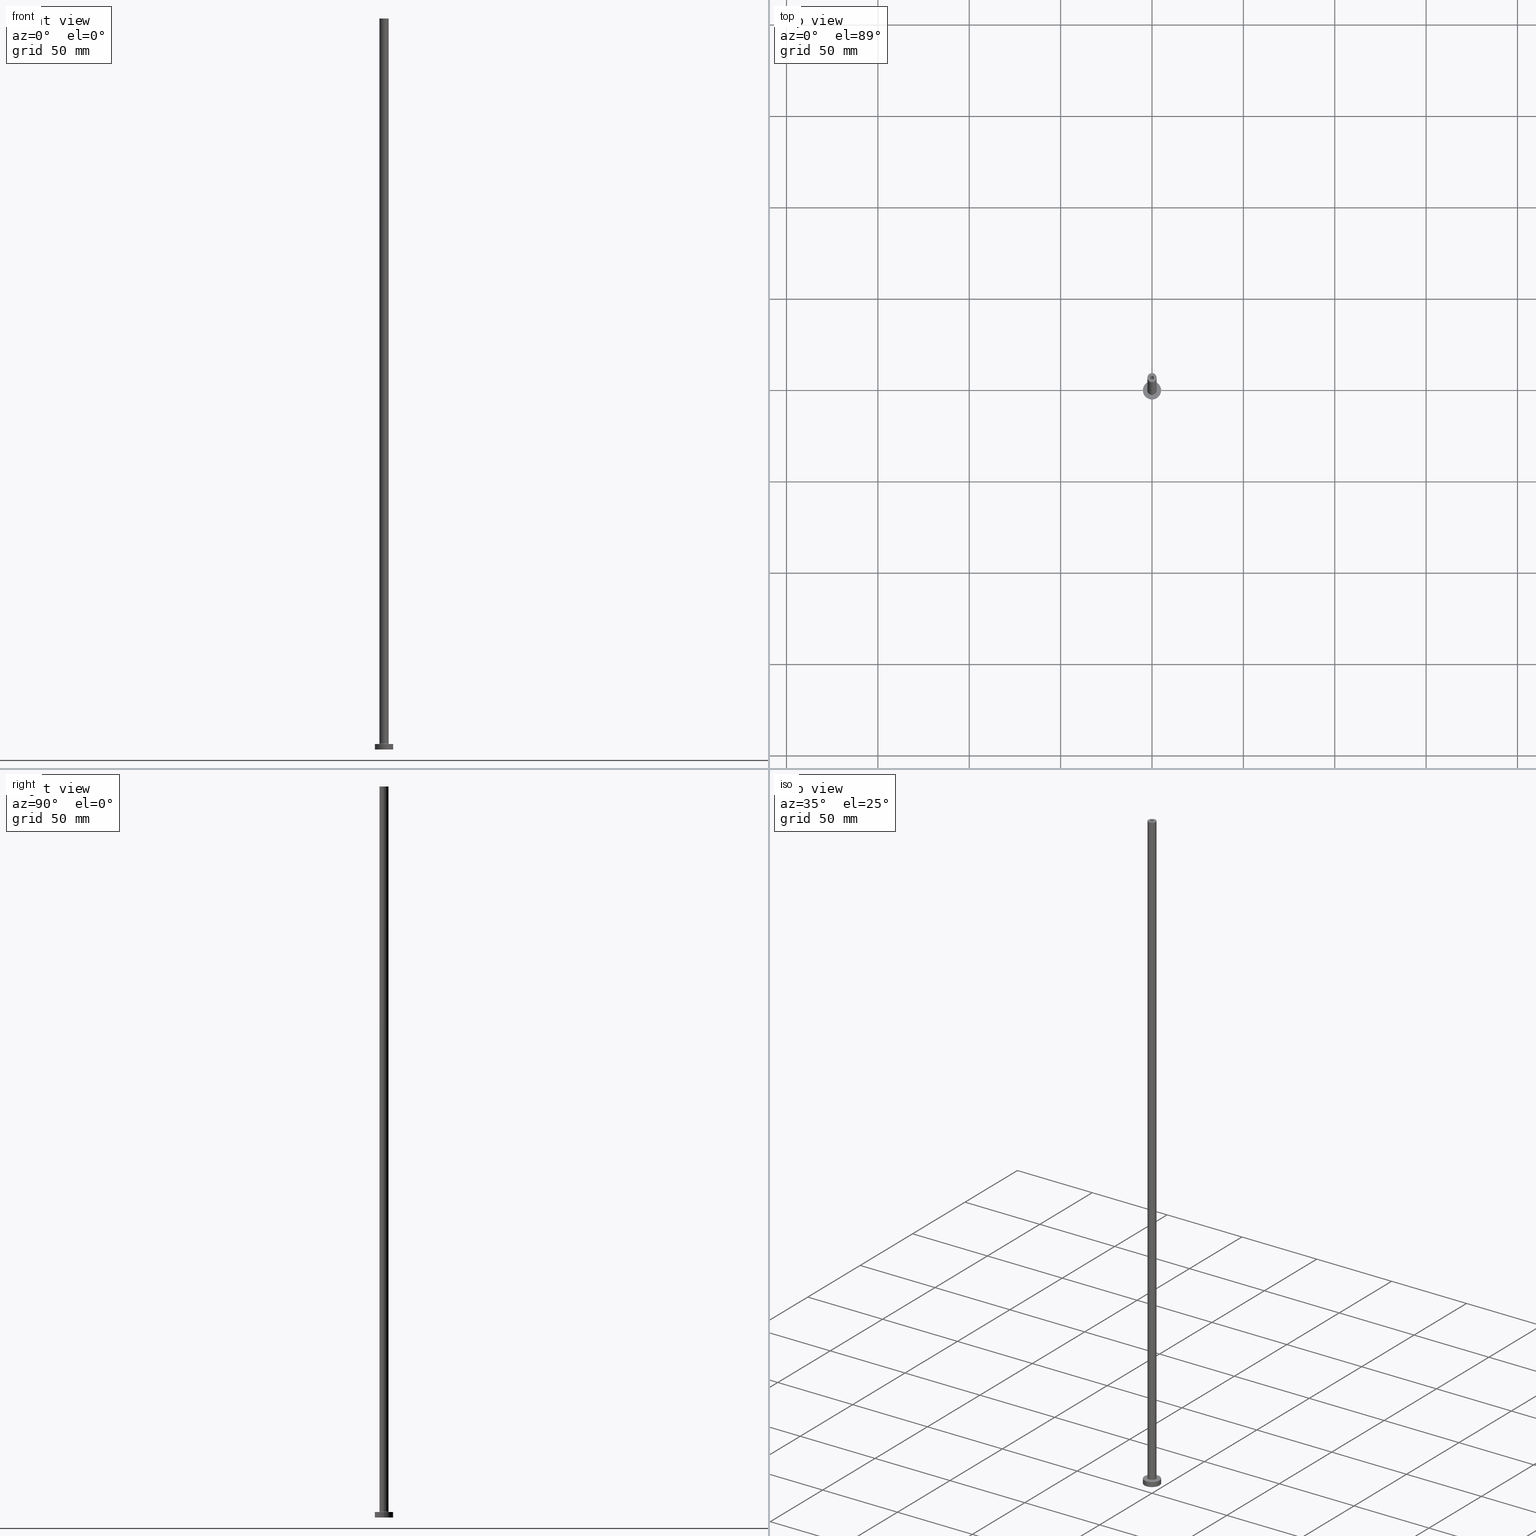
[diagram: canonical four-view strip — front | top / right | iso, engineering-drawing reading convention]
A machine part, canonical four-view strip (front | top / right | iso — engineering-drawing reading convention). The complete STEP part file that produces these views, byte-faithful:
ISO-10303-21;
HEADER;
FILE_DESCRIPTION (( 'STEP AP203' ),
    '1' );
FILE_NAME ('f98d.STEP',
    '2023-02-13T18:11:41',
    ( '' ),
    ( '' ),
    'SwSTEP 2.0',
    'SolidWorks 2019',
    '' );
FILE_SCHEMA (( 'CONFIG_CONTROL_DESIGN' ));
ENDSEC;

DATA;
#1 = CARTESIAN_POINT ( 'NONE',  ( 0.000000000000000000, 0.000000000000000000, 400.0000000000000000 ) ) ;
#2 = CARTESIAN_POINT ( 'NONE',  ( 0.000000000000000000, 0.000000000000000000, 3.000000000000000000 ) ) ;
#3 = AXIS2_PLACEMENT_3D ( 'NONE', #206, #456, #197 ) ;
#4 = DIRECTION ( 'NONE',  ( 0.000000000000000000, 0.000000000000000000, -1.000000000000000000 ) ) ;
#5 = EDGE_CURVE ( 'NONE', #427, #170, #232, .T. ) ;
#6 = FACE_OUTER_BOUND ( 'NONE', #419, .T. ) ;
#7 =( NAMED_UNIT ( * ) SI_UNIT ( $, .STERADIAN. ) SOLID_ANGLE_UNIT ( ) );
#8 = DIRECTION ( 'NONE',  ( 1.000000000000000000, 0.000000000000000000, 0.000000000000000000 ) ) ;
#9 = AXIS2_PLACEMENT_3D ( 'NONE', #2, #35, #413 ) ;
#10 = COORDINATED_UNIVERSAL_TIME_OFFSET ( 1, 0, .AHEAD. ) ;
#11 = ORIENTED_EDGE ( 'NONE', *, *, #68, .F. ) ;
#12 = CALENDAR_DATE ( 2023, 13, 2 ) ;
#13 = DIRECTION ( 'NONE',  ( 1.000000000000000000, 0.000000000000000000, -0.000000000000000000 ) ) ;
#14 = COORDINATED_UNIVERSAL_TIME_OFFSET ( 1, 0, .AHEAD. ) ;
#15 = CARTESIAN_POINT ( 'NONE',  ( -2.799999999999999822, 3.429011037612589276E-16, 3.000000000000012434 ) ) ;
#16 = AXIS2_PLACEMENT_3D ( 'NONE', #229, #343, #449 ) ;
#17 = PERSON_AND_ORGANIZATION_ROLE ( 'design_owner' ) ;
#18 = PERSON_AND_ORGANIZATION_ROLE ( 'design_supplier' ) ;
#19 = DIRECTION ( 'NONE',  ( -0.000000000000000000, -0.000000000000000000, -1.000000000000000000 ) ) ;
#20 = FACE_OUTER_BOUND ( 'NONE', #40, .T. ) ;
#21 = DIRECTION ( 'NONE',  ( 0.000000000000000000, 0.000000000000000000, 1.000000000000000000 ) ) ;
#22 = ADVANCED_FACE ( 'NONE', ( #234 ), #387, .T. ) ;
#23 = AXIS2_PLACEMENT_3D ( 'NONE', #175, #82, #145 ) ;
#24 = AXIS2_PLACEMENT_3D ( 'NONE', #218, #212, #294 ) ;
#25 = DIRECTION ( 'NONE',  ( 0.000000000000000000, 0.000000000000000000, -1.000000000000000000 ) ) ;
#26 = PLANE ( 'NONE',  #319 ) ;
#27 = VERTEX_POINT ( 'NONE', #436 ) ;
#28 = DIRECTION ( 'NONE',  ( -1.000000000000000000, 0.000000000000000000, 0.000000000000000000 ) ) ;
#29 = EDGE_CURVE ( 'NONE', #144, #170, #249, .T. ) ;
#30 = APPLICATION_CONTEXT ( 'configuration controlled 3d designs of mechanical parts and assemblies' ) ;
#31 = ORIENTED_EDGE ( 'NONE', *, *, #272, .F. ) ;
#32 = CIRCLE ( 'NONE', #282, 0.2999999999999999334 ) ;
#33 = ORIENTED_EDGE ( 'NONE', *, *, #276, .F. ) ;
#34 = ADVANCED_FACE ( 'NONE', ( #162 ), #39, .T. ) ;
#35 = DIRECTION ( 'NONE',  ( -0.000000000000000000, -0.000000000000000000, -1.000000000000000000 ) ) ;
#36 = AXIS2_PLACEMENT_3D ( 'NONE', #289, #440, #110 ) ;
#37 = ORIENTED_EDGE ( 'NONE', *, *, #96, .T. ) ;
#38 = DIRECTION ( 'NONE',  ( -0.000000000000000000, -0.000000000000000000, -1.000000000000000000 ) ) ;
#39 = CYLINDRICAL_SURFACE ( 'NONE', #454, 5.000000000000000000 ) ;
#40 = EDGE_LOOP ( 'NONE', ( #11, #126 ) ) ;
#41 = CARTESIAN_POINT ( 'NONE',  ( -2.799999999999999822, 3.429011037612588783E-16, 3.300000000000025135 ) ) ;
#42 = EDGE_CURVE ( 'NONE', #438, #385, #32, .T. ) ;
#43 = DATE_AND_TIME ( #366, #416 ) ;
#44 = ORIENTED_EDGE ( 'NONE', *, *, #159, .T. ) ;
#45 = LINE ( 'NONE', #141, #373 ) ;
#46 = VECTOR ( 'NONE', #453, 1000.000000000000000 ) ;
#47 = AXIS2_PLACEMENT_3D ( 'NONE', #50, #281, #185 ) ;
#48 = AXIS2_PLACEMENT_3D ( 'NONE', #117, #120, #412 ) ;
#49 = ORIENTED_EDGE ( 'NONE', *, *, #178, .F. ) ;
#50 = CARTESIAN_POINT ( 'NONE',  ( 0.000000000000000000, 0.000000000000000000, 400.0000000000000000 ) ) ;
#51 = APPROVAL_DATE_TIME ( #287, #271 ) ;
#52 = DIRECTION ( 'NONE',  ( 0.000000000000000000, 0.000000000000000000, -1.000000000000000000 ) ) ;
#53 = APPROVAL_DATE_TIME ( #372, #125 ) ;
#54 = DIRECTION ( 'NONE',  ( 1.000000000000000000, 0.000000000000000000, 0.000000000000000000 ) ) ;
#55 = EDGE_CURVE ( 'NONE', #27, #140, #191, .T. ) ;
#56 = DIRECTION ( 'NONE',  ( -1.000000000000000000, 0.000000000000000000, 0.000000000000000000 ) ) ;
#57 = VECTOR ( 'NONE', #158, 1000.000000000000000 ) ;
#58 = CC_DESIGN_SECURITY_CLASSIFICATION ( #308, ( #391 ) ) ;
#59 = CARTESIAN_POINT ( 'NONE',  ( -1.000000000000000000, 0.000000000000000000, 365.0000000000000000 ) ) ;
#60 = LINE ( 'NONE', #265, #57 ) ;
#61 = DIRECTION ( 'NONE',  ( 1.000000000000000000, 0.000000000000000000, 0.000000000000000000 ) ) ;
#62 = FACE_OUTER_BOUND ( 'NONE', #398, .T. ) ;
#63 = AXIS2_PLACEMENT_3D ( 'NONE', #376, #415, #121 ) ;
#64 = CARTESIAN_POINT ( 'NONE',  ( -1.149999999999999911, 0.000000000000000000, 365.0000000000000000 ) ) ;
#65 = EDGE_LOOP ( 'NONE', ( #321, #420, #151, #380 ) ) ;
#66 = DIRECTION ( 'NONE',  ( 0.000000000000000000, 0.000000000000000000, -1.000000000000000000 ) ) ;
#67 = VERTEX_POINT ( 'NONE', #64 ) ;
#68 = EDGE_CURVE ( 'NONE', #67, #259, #143, .T. ) ;
#69 = TOROIDAL_SURFACE ( 'NONE', #16, 2.799999999999999822, 0.2999999999999999889 ) ;
#70 = APPROVAL_PERSON_ORGANIZATION ( #116, #271, #414 ) ;
#71 = DIRECTION ( 'NONE',  ( 0.000000000000000000, -1.000000000000000000, 0.000000000000000000 ) ) ;
#72 = ADVANCED_FACE ( 'NONE', ( #354, #347 ), #26, .T. ) ;
#73 = VERTEX_POINT ( 'NONE', #171 ) ;
#74 = EDGE_LOOP ( 'NONE', ( #136, #33, #252, #204 ) ) ;
#75 = ORIENTED_EDGE ( 'NONE', *, *, #342, .T. ) ;
#76 = CARTESIAN_POINT ( 'NONE',  ( 0.000000000000000000, 0.000000000000000000, 0.000000000000000000 ) ) ;
#77 = DIRECTION ( 'NONE',  ( 0.000000000000000000, 0.000000000000000000, -1.000000000000000000 ) ) ;
#78 = VERTEX_POINT ( 'NONE', #318 ) ;
#79 = CARTESIAN_POINT ( 'NONE',  ( 0.000000000000000000, 0.000000000000000000, 368.2526911934581335 ) ) ;
#80 = CC_DESIGN_DATE_AND_TIME_ASSIGNMENT ( #43, #106, ( #362 ) ) ;
#81 = ORIENTED_EDGE ( 'NONE', *, *, #388, .F. ) ;
#82 = DIRECTION ( 'NONE',  ( 0.000000000000000000, 0.000000000000000000, 1.000000000000000000 ) ) ;
#83 = CIRCLE ( 'NONE', #173, 0.2999999999999999334 ) ;
#84 = APPROVAL_ROLE ( '' ) ;
#85 = DATE_AND_TIME ( #12, #245 ) ;
#86 = ORIENTED_EDGE ( 'NONE', *, *, #330, .T. ) ;
#87 = CARTESIAN_POINT ( 'NONE',  ( 1.149999999999999911, 1.408343819019456028E-16, 365.0000000000000000 ) ) ;
#88 = CARTESIAN_POINT ( 'NONE',  ( 0.000000000000000000, 0.000000000000000000, 0.000000000000000000 ) ) ;
#89 = SHAPE_DEFINITION_REPRESENTATION ( #137, #169 ) ;
#90 = CARTESIAN_POINT ( 'NONE',  ( 0.000000000000000000, 0.000000000000000000, 3.000000000000000000 ) ) ;
#91 = CYLINDRICAL_SURFACE ( 'NONE', #202, 2.500000000000000000 ) ;
#92 = CIRCLE ( 'NONE', #326, 1.149999999999999911 ) ;
#93 = CIRCLE ( 'NONE', #192, 5.000000000000000000 ) ;
#94 = DIRECTION ( 'NONE',  ( 0.000000000000000000, 0.000000000000000000, 1.000000000000000000 ) ) ;
#95 = CARTESIAN_POINT ( 'NONE',  ( -2.500000000000000000, 0.000000000000000000, 400.0000000000000000 ) ) ;
#96 = EDGE_CURVE ( 'NONE', #306, #385, #240, .T. ) ;
#97 = AXIS2_PLACEMENT_3D ( 'NONE', #451, #338, #195 ) ;
#98 = CARTESIAN_POINT ( 'NONE',  ( 0.000000000000000000, 0.000000000000000000, 400.0000000000000000 ) ) ;
#99 = CARTESIAN_POINT ( 'NONE',  ( 0.000000000000000000, 0.000000000000000000, 0.000000000000000000 ) ) ;
#100 = CIRCLE ( 'NONE', #48, 2.500000000000000000 ) ;
#101 = EDGE_CURVE ( 'NONE', #259, #348, #300, .T. ) ;
#102 = AXIS2_PLACEMENT_3D ( 'NONE', #247, #52, #154 ) ;
#103 = ORIENTED_EDGE ( 'NONE', *, *, #101, .T. ) ;
#104 = CIRCLE ( 'NONE', #455, 1.000000000000000000 ) ;
#105 = CC_DESIGN_PERSON_AND_ORGANIZATION_ASSIGNMENT ( #224, #296, ( #391 ) ) ;
#106 = DATE_TIME_ROLE ( 'creation_date' ) ;
#107 = ORIENTED_EDGE ( 'NONE', *, *, #458, .T. ) ;
#108 = CARTESIAN_POINT ( 'NONE',  ( 1.149999999999999911, 1.408343819019456028E-16, 0.000000000000000000 ) ) ;
#109 = ORIENTED_EDGE ( 'NONE', *, *, #68, .T. ) ;
#110 = DIRECTION ( 'NONE',  ( 1.000000000000000000, 0.000000000000000000, -0.000000000000000000 ) ) ;
#111 = CALENDAR_DATE ( 2023, 13, 2 ) ;
#112 = VERTEX_POINT ( 'NONE', #368 ) ;
#113 = DIRECTION ( 'NONE',  ( 1.000000000000000000, 0.000000000000000000, 0.000000000000000000 ) ) ;
#114 = CIRCLE ( 'NONE', #47, 2.500000000000000000 ) ;
#115 = VECTOR ( 'NONE', #435, 1000.000000000000000 ) ;
#116 = PERSON_AND_ORGANIZATION ( #273, #434 ) ;
#117 = CARTESIAN_POINT ( 'NONE',  ( 0.000000000000000000, 0.000000000000000000, 3.300000000000025135 ) ) ;
#118 = PERSON_AND_ORGANIZATION_ROLE ( 'creator' ) ;
#119 = ADVANCED_FACE ( 'NONE', ( #293 ), #278, .F. ) ;
#120 = DIRECTION ( 'NONE',  ( 0.000000000000000000, 0.000000000000000000, 1.000000000000000000 ) ) ;
#121 = DIRECTION ( 'NONE',  ( 1.000000000000000000, 0.000000000000000000, 0.000000000000000000 ) ) ;
#122 = DIRECTION ( 'NONE',  ( -1.000000000000000000, 0.000000000000000000, 0.000000000000000000 ) ) ;
#123 = VECTOR ( 'NONE', #407, 1000.000000000000000 ) ;
#124 = CIRCLE ( 'NONE', #97, 2.500000000000000000 ) ;
#125 = APPROVAL ( #257, 'NEUR�EN�' ) ;
#126 = ORIENTED_EDGE ( 'NONE', *, *, #430, .F. ) ;
#127 = CARTESIAN_POINT ( 'NONE',  ( 5.000000000000000000, 6.123233995736766282E-16, 3.000000000000000000 ) ) ;
#128 = VERTEX_POINT ( 'NONE', #211 ) ;
#129 = ORIENTED_EDGE ( 'NONE', *, *, #405, .T. ) ;
#130 = ADVANCED_FACE ( 'NONE', ( #147 ), #371, .F. ) ;
#131 = CIRCLE ( 'NONE', #374, 1.149999999999999911 ) ;
#132 = ORIENTED_EDGE ( 'NONE', *, *, #55, .F. ) ;
#133 = ADVANCED_FACE ( 'NONE', ( #339, #20 ), #160, .F. ) ;
#134 = AXIS2_PLACEMENT_3D ( 'NONE', #155, #25, #386 ) ;
#135 = ORIENTED_EDGE ( 'NONE', *, *, #5, .T. ) ;
#136 = ORIENTED_EDGE ( 'NONE', *, *, #458, .F. ) ;
#137 = PRODUCT_DEFINITION_SHAPE ( 'NONE', 'NONE',  #362 ) ;
#138 = DIRECTION ( 'NONE',  ( 0.000000000000000000, 0.000000000000000000, -1.000000000000000000 ) ) ;
#139 = DIRECTION ( 'NONE',  ( -1.000000000000000000, 0.000000000000000000, 0.000000000000000000 ) ) ;
#140 = VERTEX_POINT ( 'NONE', #377 ) ;
#141 = CARTESIAN_POINT ( 'NONE',  ( -1.149999999999999911, 0.000000000000000000, 368.2526911934581335 ) ) ;
#142 = APPROVAL_DATE_TIME ( #324, #176 ) ;
#143 = CIRCLE ( 'NONE', #3, 1.149999999999999911 ) ;
#144 = VERTEX_POINT ( 'NONE', #304 ) ;
#145 = DIRECTION ( 'NONE',  ( 1.000000000000000000, 0.000000000000000000, 0.000000000000000000 ) ) ;
#146 = APPROVAL_PERSON_ORGANIZATION ( #450, #176, #261 ) ;
#147 = FACE_OUTER_BOUND ( 'NONE', #299, .T. ) ;
#148 = PERSON_AND_ORGANIZATION ( #273, #434 ) ;
#149 = EDGE_LOOP ( 'NONE', ( #443, #75 ) ) ;
#150 = PLANE ( 'NONE',  #36 ) ;
#151 = ORIENTED_EDGE ( 'NONE', *, *, #272, .T. ) ;
#152 = CARTESIAN_POINT ( 'NONE',  ( -5.000000000000000000, 0.000000000000000000, 3.000000000000000000 ) ) ;
#153 = SECURITY_CLASSIFICATION_LEVEL ( 'unclassified' ) ;
#154 = DIRECTION ( 'NONE',  ( -1.000000000000000000, 0.000000000000000000, 0.000000000000000000 ) ) ;
#155 = CARTESIAN_POINT ( 'NONE',  ( 0.000000000000000000, 0.000000000000000000, 400.0000000000000000 ) ) ;
#156 = CARTESIAN_POINT ( 'NONE',  ( 0.000000000000000000, 0.000000000000000000, 3.000000000000000000 ) ) ;
#157 = DIRECTION ( 'NONE',  ( 1.000000000000000000, 0.000000000000000000, -0.000000000000000000 ) ) ;
#158 = DIRECTION ( 'NONE',  ( 0.000000000000000000, 0.000000000000000000, -1.000000000000000000 ) ) ;
#159 = EDGE_CURVE ( 'NONE', #200, #27, #452, .T. ) ;
#160 = PLANE ( 'NONE',  #258 ) ;
#161 = AXIS2_PLACEMENT_3D ( 'NONE', #298, #242, #113 ) ;
#162 = FACE_OUTER_BOUND ( 'NONE', #328, .T. ) ;
#163 = ORIENTED_EDGE ( 'NONE', *, *, #379, .F. ) ;
#164 = FACE_OUTER_BOUND ( 'NONE', #74, .T. ) ;
#165 = ORIENTED_EDGE ( 'NONE', *, *, #383, .F. ) ;
#166 = AXIS2_PLACEMENT_3D ( 'NONE', #76, #260, #8 ) ;
#167 = CIRCLE ( 'NONE', #447, 5.000000000000000000 ) ;
#168 = DIRECTION ( 'NONE',  ( 0.000000000000000000, 0.000000000000000000, 1.000000000000000000 ) ) ;
#169 = ADVANCED_BREP_SHAPE_REPRESENTATION ( 'f98d', ( #389, #24 ), #268 ) ;
#170 = VERTEX_POINT ( 'NONE', #302 ) ;
#171 = CARTESIAN_POINT ( 'NONE',  ( 2.500000000000000000, 3.061616997868383141E-16, 400.0000000000000000 ) ) ;
#172 = CC_DESIGN_PERSON_AND_ORGANIZATION_ASSIGNMENT ( #369, #250, ( #308 ) ) ;
#173 = AXIS2_PLACEMENT_3D ( 'NONE', #41, #177, #285 ) ;
#174 = APPLICATION_CONTEXT ( 'configuration controlled 3d designs of mechanical parts and assemblies' ) ;
#175 = CARTESIAN_POINT ( 'NONE',  ( 0.000000000000000000, 0.000000000000000000, 400.0000000000000000 ) ) ;
#176 = APPROVAL ( #442, 'NEUR�EN�' ) ;
#177 = DIRECTION ( 'NONE',  ( 1.224646799147353207E-16, 1.000000000000000000, -0.000000000000000000 ) ) ;
#178 = EDGE_CURVE ( 'NONE', #144, #128, #239, .T. ) ;
#179 = COORDINATED_UNIVERSAL_TIME_OFFSET ( 1, 0, .AHEAD. ) ;
#180 = AXIS2_PLACEMENT_3D ( 'NONE', #370, #331, #13 ) ;
#181 = ORIENTED_EDGE ( 'NONE', *, *, #42, .F. ) ;
#182 = DIRECTION ( 'NONE',  ( 0.000000000000000000, 0.000000000000000000, -1.000000000000000000 ) ) ;
#183 = LOCAL_TIME ( 19, 11, 41.00000000000000000, #408 ) ;
#184 = ORIENTED_EDGE ( 'NONE', *, *, #388, .T. ) ;
#185 = DIRECTION ( 'NONE',  ( 1.000000000000000000, 0.000000000000000000, 0.000000000000000000 ) ) ;
#186 = PRODUCT_RELATED_PRODUCT_CATEGORY ( 'detail', '', ( #432 ) ) ;
#187 = PERSON_AND_ORGANIZATION ( #273, #434 ) ;
#188 = CARTESIAN_POINT ( 'NONE',  ( 0.000000000000000000, 0.000000000000000000, 0.000000000000000000 ) ) ;
#189 = EDGE_CURVE ( 'NONE', #128, #427, #60, .T. ) ;
#190 = LINE ( 'NONE', #215, #115 ) ;
#191 = CIRCLE ( 'NONE', #421, 5.000000000000000000 ) ;
#192 = AXIS2_PLACEMENT_3D ( 'NONE', #156, #340, #54 ) ;
#193 = CARTESIAN_POINT ( 'NONE',  ( 0.000000000000000000, 0.000000000000000000, 365.0000000000000000 ) ) ;
#194 = DIRECTION ( 'NONE',  ( -0.000000000000000000, -0.000000000000000000, -1.000000000000000000 ) ) ;
#195 = DIRECTION ( 'NONE',  ( 1.000000000000000000, 0.000000000000000000, 0.000000000000000000 ) ) ;
#196 = ORIENTED_EDGE ( 'NONE', *, *, #286, .F. ) ;
#197 = DIRECTION ( 'NONE',  ( 1.000000000000000000, 0.000000000000000000, 0.000000000000000000 ) ) ;
#198 = ORIENTED_EDGE ( 'NONE', *, *, #320, .F. ) ;
#199 = EDGE_LOOP ( 'NONE', ( #135, #284 ) ) ;
#200 = VERTEX_POINT ( 'NONE', #307 ) ;
#201 = ADVANCED_FACE ( 'NONE', ( #236 ), #349, .F. ) ;
#202 = AXIS2_PLACEMENT_3D ( 'NONE', #98, #194, #122 ) ;
#203 = DIRECTION ( 'NONE',  ( 1.000000000000000000, 0.000000000000000000, 0.000000000000000000 ) ) ;
#204 = ORIENTED_EDGE ( 'NONE', *, *, #409, .T. ) ;
#205 = ADVANCED_FACE ( 'NONE', ( #164 ), #91, .T. ) ;
#206 = CARTESIAN_POINT ( 'NONE',  ( 0.000000000000000000, 0.000000000000000000, 365.0000000000000000 ) ) ;
#207 = DIRECTION ( 'NONE',  ( -0.000000000000000000, -0.000000000000000000, -1.000000000000000000 ) ) ;
#208 = CYLINDRICAL_SURFACE ( 'NONE', #102, 1.000000000000000000 ) ;
#209 = ORIENTED_EDGE ( 'NONE', *, *, #178, .T. ) ;
#210 = PLANE ( 'NONE',  #180 ) ;
#211 = CARTESIAN_POINT ( 'NONE',  ( -1.000000000000000000, 0.000000000000000000, 400.0000000000000000 ) ) ;
#212 = DIRECTION ( 'NONE',  ( 0.000000000000000000, 0.000000000000000000, 1.000000000000000000 ) ) ;
#213 = ORIENTED_EDGE ( 'NONE', *, *, #189, .F. ) ;
#214 = DIRECTION ( 'NONE',  ( -1.000000000000000000, 0.000000000000000000, 0.000000000000000000 ) ) ;
#215 = CARTESIAN_POINT ( 'NONE',  ( 2.500000000000000000, 3.061616997868383141E-16, 400.0000000000000000 ) ) ;
#216 = CIRCLE ( 'NONE', #433, 2.799999999999999822 ) ;
#217 = ORIENTED_EDGE ( 'NONE', *, *, #345, .F. ) ;
#218 = CARTESIAN_POINT ( 'NONE',  ( 0.000000000000000000, 0.000000000000000000, 0.000000000000000000 ) ) ;
#219 = CALENDAR_DATE ( 2023, 13, 2 ) ;
#220 = VERTEX_POINT ( 'NONE', #313 ) ;
#221 = FACE_OUTER_BOUND ( 'NONE', #317, .T. ) ;
#222 = CALENDAR_DATE ( 2023, 13, 2 ) ;
#223 = CARTESIAN_POINT ( 'NONE',  ( 1.149999999999999911, 1.408343819019456028E-16, 368.2526911934581335 ) ) ;
#224 = PERSON_AND_ORGANIZATION ( #273, #434 ) ;
#225 = DIRECTION ( 'NONE',  ( 0.000000000000000000, 0.000000000000000000, 1.000000000000000000 ) ) ;
#226 = CIRCLE ( 'NONE', #23, 2.500000000000000000 ) ;
#227 = CC_DESIGN_APPROVAL ( #271, ( #308 ) ) ;
#228 = ORIENTED_EDGE ( 'NONE', *, *, #29, .T. ) ;
#229 = CARTESIAN_POINT ( 'NONE',  ( 0.000000000000000000, 0.000000000000000000, 3.300000000000025135 ) ) ;
#230 = ADVANCED_FACE ( 'NONE', ( #267 ), #459, .T. ) ;
#231 = ORIENTED_EDGE ( 'NONE', *, *, #409, .F. ) ;
#232 = CIRCLE ( 'NONE', #336, 1.000000000000000000 ) ;
#233 = LOCAL_TIME ( 19, 11, 41.00000000000000000, #14 ) ;
#234 = FACE_OUTER_BOUND ( 'NONE', #417, .T. ) ;
#235 = ADVANCED_FACE ( 'NONE', ( #62 ), #69, .F. ) ;
#236 = FACE_OUTER_BOUND ( 'NONE', #428, .T. ) ;
#237 = ORIENTED_EDGE ( 'NONE', *, *, #410, .T. ) ;
#238 = DIRECTION ( 'NONE',  ( 1.000000000000000000, 0.000000000000000000, -0.000000000000000000 ) ) ;
#239 = CIRCLE ( 'NONE', #63, 1.000000000000000000 ) ;
#240 = CIRCLE ( 'NONE', #9, 2.799999999999999822 ) ;
#241 = VERTEX_POINT ( 'NONE', #95 ) ;
#242 = DIRECTION ( 'NONE',  ( 0.000000000000000000, 0.000000000000000000, 1.000000000000000000 ) ) ;
#243 = DIRECTION ( 'NONE',  ( 0.000000000000000000, 0.000000000000000000, 1.000000000000000000 ) ) ;
#244 = AXIS2_PLACEMENT_3D ( 'NONE', #446, #334, #323 ) ;
#245 = LOCAL_TIME ( 19, 11, 41.00000000000000000, #10 ) ;
#246 = EDGE_LOOP ( 'NONE', ( #360, #37 ) ) ;
#247 = CARTESIAN_POINT ( 'NONE',  ( 0.000000000000000000, 0.000000000000000000, 400.0000000000000000 ) ) ;
#248 =( NAMED_UNIT ( * ) PLANE_ANGLE_UNIT ( ) SI_UNIT ( $, .RADIAN. ) );
#249 = LINE ( 'NONE', #399, #365 ) ;
#250 = PERSON_AND_ORGANIZATION_ROLE ( 'classification_officer' ) ;
#251 = FACE_OUTER_BOUND ( 'NONE', #65, .T. ) ;
#252 = ORIENTED_EDGE ( 'NONE', *, *, #379, .T. ) ;
#253 = LINE ( 'NONE', #404, #295 ) ;
#254 = CC_DESIGN_PERSON_AND_ORGANIZATION_ASSIGNMENT ( #187, #18, ( #391 ) ) ;
#255 = EDGE_CURVE ( 'NONE', #78, #348, #92, .T. ) ;
#256 = ADVANCED_FACE ( 'NONE', ( #6 ), #208, .F. ) ;
#257 = APPROVAL_STATUS ( 'not_yet_approved' ) ;
#258 = AXIS2_PLACEMENT_3D ( 'NONE', #346, #457, #157 ) ;
#259 = VERTEX_POINT ( 'NONE', #87 ) ;
#260 = DIRECTION ( 'NONE',  ( -0.000000000000000000, -0.000000000000000000, -1.000000000000000000 ) ) ;
#261 = APPROVAL_ROLE ( '' ) ;
#262 = CARTESIAN_POINT ( 'NONE',  ( 0.000000000000000000, 0.000000000000000000, 400.0000000000000000 ) ) ;
#263 = PERSON_AND_ORGANIZATION ( #273, #434 ) ;
#264 = DIRECTION ( 'NONE',  ( 1.000000000000000000, 0.000000000000000000, 0.000000000000000000 ) ) ;
#265 = CARTESIAN_POINT ( 'NONE',  ( -1.000000000000000000, 0.000000000000000000, 400.0000000000000000 ) ) ;
#266 = ORIENTED_EDGE ( 'NONE', *, *, #189, .T. ) ;
#267 = FACE_OUTER_BOUND ( 'NONE', #439, .T. ) ;
#268 =( GEOMETRIC_REPRESENTATION_CONTEXT ( 3 ) GLOBAL_UNCERTAINTY_ASSIGNED_CONTEXT ( ( #422 ) ) GLOBAL_UNIT_ASSIGNED_CONTEXT ( ( #335, #248, #7 ) ) REPRESENTATION_CONTEXT ( 'NONE', 'WORKASPACE' ) );
#269 = ORIENTED_EDGE ( 'NONE', *, *, #405, .F. ) ;
#270 = CARTESIAN_POINT ( 'NONE',  ( 0.000000000000000000, 0.000000000000000000, 368.2526911934581335 ) ) ;
#271 = APPROVAL ( #437, 'NEUR�EN�' ) ;
#272 = EDGE_CURVE ( 'NONE', #67, #78, #45, .T. ) ;
#273 = PERSON ( 'NEUR�EN�', 'NEUR�EN�', 'NEUR�EN�', ('NEUR�EN�'), ('NEUR�EN�'), ('NEUR�EN�') ) ;
#274 = CARTESIAN_POINT ( 'NONE',  ( 0.000000000000000000, 0.000000000000000000, 365.0000000000000000 ) ) ;
#275 = ORIENTED_EDGE ( 'NONE', *, *, #96, .F. ) ;
#276 = EDGE_CURVE ( 'NONE', #241, #73, #114, .T. ) ;
#277 = ADVANCED_FACE ( 'NONE', ( #395, #221 ), #210, .T. ) ;
#278 = TOROIDAL_SURFACE ( 'NONE', #244, 2.799999999999999822, 0.2999999999999999889 ) ;
#279 = ORIENTED_EDGE ( 'NONE', *, *, #342, .F. ) ;
#280 = ORIENTED_EDGE ( 'NONE', *, *, #332, .F. ) ;
#281 = DIRECTION ( 'NONE',  ( 0.000000000000000000, 0.000000000000000000, 1.000000000000000000 ) ) ;
#282 = AXIS2_PLACEMENT_3D ( 'NONE', #429, #71, #4 ) ;
#283 = MECHANICAL_CONTEXT ( 'NONE', #174, 'mechanical' ) ;
#284 = ORIENTED_EDGE ( 'NONE', *, *, #320, .T. ) ;
#285 = DIRECTION ( 'NONE',  ( -1.000000000000000000, 1.224646799147353207E-16, 0.000000000000000000 ) ) ;
#286 = EDGE_CURVE ( 'NONE', #220, #140, #361, .T. ) ;
#287 = DATE_AND_TIME ( #219, #352 ) ;
#288 = ORIENTED_EDGE ( 'NONE', *, *, #345, .T. ) ;
#289 = CARTESIAN_POINT ( 'NONE',  ( 0.000000000000000000, 0.000000000000000000, 0.000000000000000000 ) ) ;
#290 = PERSON_AND_ORGANIZATION ( #273, #434 ) ;
#291 = CARTESIAN_POINT ( 'NONE',  ( 0.000000000000000000, 0.000000000000000000, 400.0000000000000000 ) ) ;
#292 = DIRECTION ( 'NONE',  ( 1.000000000000000000, 0.000000000000000000, 0.000000000000000000 ) ) ;
#293 = FACE_OUTER_BOUND ( 'NONE', #316, .T. ) ;
#294 = DIRECTION ( 'NONE',  ( 1.000000000000000000, 0.000000000000000000, 0.000000000000000000 ) ) ;
#295 = VECTOR ( 'NONE', #19, 1000.000000000000000 ) ;
#296 = PERSON_AND_ORGANIZATION_ROLE ( 'creator' ) ;
#297 = APPROVAL_PERSON_ORGANIZATION ( #290, #125, #84 ) ;
#298 = CARTESIAN_POINT ( 'NONE',  ( 0.000000000000000000, 0.000000000000000000, 365.0000000000000000 ) ) ;
#299 = EDGE_LOOP ( 'NONE', ( #356, #209, #266, #198 ) ) ;
#300 = LINE ( 'NONE', #223, #123 ) ;
#301 = APPLICATION_PROTOCOL_DEFINITION ( 'international standard', 'config_control_design', 1994, #30 ) ;
#302 = CARTESIAN_POINT ( 'NONE',  ( 1.000000000000000000, 1.224646799147353207E-16, 365.0000000000000000 ) ) ;
#303 = CARTESIAN_POINT ( 'NONE',  ( 2.799999999999999822, 0.000000000000000000, 3.000000000000012434 ) ) ;
#304 = CARTESIAN_POINT ( 'NONE',  ( 1.000000000000000000, 1.224646799147353207E-16, 400.0000000000000000 ) ) ;
#305 = VECTOR ( 'NONE', #444, 1000.000000000000000 ) ;
#306 = VERTEX_POINT ( 'NONE', #15 ) ;
#307 = CARTESIAN_POINT ( 'NONE',  ( 5.000000000000000000, 6.123233995736766282E-16, 3.000000000000000000 ) ) ;
#308 = SECURITY_CLASSIFICATION ( '', '', #153 ) ;
#309 = DIRECTION ( 'NONE',  ( 1.000000000000000000, 0.000000000000000000, 0.000000000000000000 ) ) ;
#310 = DIRECTION ( 'NONE',  ( -1.000000000000000000, 0.000000000000000000, 0.000000000000000000 ) ) ;
#311 = ORIENTED_EDGE ( 'NONE', *, *, #286, .T. ) ;
#312 = EDGE_LOOP ( 'NONE', ( #322, #132 ) ) ;
#313 = CARTESIAN_POINT ( 'NONE',  ( -5.000000000000000000, 0.000000000000000000, 3.000000000000000000 ) ) ;
#314 = AXIS2_PLACEMENT_3D ( 'NONE', #418, #341, #56 ) ;
#315 = CIRCLE ( 'NONE', #337, 5.000000000000000000 ) ;
#316 = EDGE_LOOP ( 'NONE', ( #217, #81, #367, #275 ) ) ;
#317 = EDGE_LOOP ( 'NONE', ( #426, #350 ) ) ;
#318 = CARTESIAN_POINT ( 'NONE',  ( -1.149999999999999911, 0.000000000000000000, 0.000000000000000000 ) ) ;
#319 = AXIS2_PLACEMENT_3D ( 'NONE', #1, #423, #238 ) ;
#320 = EDGE_CURVE ( 'NONE', #170, #427, #382, .T. ) ;
#321 = ORIENTED_EDGE ( 'NONE', *, *, #101, .F. ) ;
#322 = ORIENTED_EDGE ( 'NONE', *, *, #410, .F. ) ;
#323 = DIRECTION ( 'NONE',  ( 1.000000000000000000, 0.000000000000000000, 0.000000000000000000 ) ) ;
#324 = DATE_AND_TIME ( #111, #233 ) ;
#325 = ORIENTED_EDGE ( 'NONE', *, *, #425, .F. ) ;
#326 = AXIS2_PLACEMENT_3D ( 'NONE', #188, #333, #292 ) ;
#327 = APPLICATION_PROTOCOL_DEFINITION ( 'international standard', 'config_control_design', 1994, #174 ) ;
#328 = EDGE_LOOP ( 'NONE', ( #390, #325, #311, #237 ) ) ;
#329 = FACE_OUTER_BOUND ( 'NONE', #312, .T. ) ;
#330 = EDGE_CURVE ( 'NONE', #348, #78, #424, .T. ) ;
#331 = DIRECTION ( 'NONE',  ( 0.000000000000000000, 0.000000000000000000, 1.000000000000000000 ) ) ;
#332 = EDGE_CURVE ( 'NONE', #385, #306, #216, .T. ) ;
#333 = DIRECTION ( 'NONE',  ( -0.000000000000000000, -0.000000000000000000, -1.000000000000000000 ) ) ;
#334 = DIRECTION ( 'NONE',  ( 0.000000000000000000, 0.000000000000000000, 1.000000000000000000 ) ) ;
#335 =( LENGTH_UNIT ( ) NAMED_UNIT ( * ) SI_UNIT ( .MILLI., .METRE. ) );
#336 = AXIS2_PLACEMENT_3D ( 'NONE', #274, #168, #203 ) ;
#337 = AXIS2_PLACEMENT_3D ( 'NONE', #88, #21, #264 ) ;
#338 = DIRECTION ( 'NONE',  ( 0.000000000000000000, 0.000000000000000000, 1.000000000000000000 ) ) ;
#339 = FACE_BOUND ( 'NONE', #199, .T. ) ;
#340 = DIRECTION ( 'NONE',  ( 0.000000000000000000, 0.000000000000000000, 1.000000000000000000 ) ) ;
#341 = DIRECTION ( 'NONE',  ( -0.000000000000000000, -0.000000000000000000, -1.000000000000000000 ) ) ;
#342 = EDGE_CURVE ( 'NONE', #73, #241, #226, .T. ) ;
#343 = DIRECTION ( 'NONE',  ( 0.000000000000000000, 0.000000000000000000, 1.000000000000000000 ) ) ;
#344 = CC_DESIGN_PERSON_AND_ORGANIZATION_ASSIGNMENT ( #263, #118, ( #362 ) ) ;
#345 = EDGE_CURVE ( 'NONE', #112, #306, #83, .T. ) ;
#346 = CARTESIAN_POINT ( 'NONE',  ( 0.000000000000000000, 0.000000000000000000, 365.0000000000000000 ) ) ;
#347 = FACE_OUTER_BOUND ( 'NONE', #149, .T. ) ;
#348 = VERTEX_POINT ( 'NONE', #108 ) ;
#349 = CYLINDRICAL_SURFACE ( 'NONE', #351, 1.149999999999999911 ) ;
#350 = ORIENTED_EDGE ( 'NONE', *, *, #383, .T. ) ;
#351 = AXIS2_PLACEMENT_3D ( 'NONE', #270, #66, #28 ) ;
#352 = LOCAL_TIME ( 19, 11, 41.00000000000000000, #411 ) ;
#353 = CARTESIAN_POINT ( 'NONE',  ( 0.000000000000000000, 0.000000000000000000, 3.000000000000000000 ) ) ;
#354 = FACE_BOUND ( 'NONE', #394, .T. ) ;
#355 = ORIENTED_EDGE ( 'NONE', *, *, #330, .F. ) ;
#356 = ORIENTED_EDGE ( 'NONE', *, *, #29, .F. ) ;
#357 = AXIS2_PLACEMENT_3D ( 'NONE', #79, #182, #214 ) ;
#358 = CARTESIAN_POINT ( 'NONE',  ( 0.000000000000000000, 0.000000000000000000, 3.000000000000000000 ) ) ;
#359 = CARTESIAN_POINT ( 'NONE',  ( 2.500000000000000000, 3.061616997868383141E-16, 3.300000000000025135 ) ) ;
#360 = ORIENTED_EDGE ( 'NONE', *, *, #332, .T. ) ;
#361 = LINE ( 'NONE', #152, #305 ) ;
#362 = PRODUCT_DEFINITION ( 'NEZN�M�', '', #391, #381 ) ;
#363 = ADVANCED_FACE ( 'NONE', ( #251 ), #401, .F. ) ;
#364 = FACE_BOUND ( 'NONE', #400, .T. ) ;
#365 = VECTOR ( 'NONE', #138, 1000.000000000000000 ) ;
#366 = CALENDAR_DATE ( 2023, 13, 2 ) ;
#367 = ORIENTED_EDGE ( 'NONE', *, *, #42, .T. ) ;
#368 = CARTESIAN_POINT ( 'NONE',  ( -2.500000000000000000, 0.000000000000000000, 3.300000000000025135 ) ) ;
#369 = PERSON_AND_ORGANIZATION ( #273, #434 ) ;
#370 = CARTESIAN_POINT ( 'NONE',  ( 0.000000000000000000, 0.000000000000000000, 3.000000000000000000 ) ) ;
#371 = CYLINDRICAL_SURFACE ( 'NONE', #134, 1.000000000000000000 ) ;
#372 = DATE_AND_TIME ( #222, #183 ) ;
#373 = VECTOR ( 'NONE', #77, 1000.000000000000000 ) ;
#374 = AXIS2_PLACEMENT_3D ( 'NONE', #193, #441, #402 ) ;
#375 = DIRECTION ( 'NONE',  ( 1.000000000000000000, 0.000000000000000000, 0.000000000000000000 ) ) ;
#376 = CARTESIAN_POINT ( 'NONE',  ( 0.000000000000000000, 0.000000000000000000, 400.0000000000000000 ) ) ;
#377 = CARTESIAN_POINT ( 'NONE',  ( -5.000000000000000000, 0.000000000000000000, 0.000000000000000000 ) ) ;
#378 = ADVANCED_FACE ( 'NONE', ( #364, #329 ), #150, .F. ) ;
#379 = EDGE_CURVE ( 'NONE', #241, #112, #253, .T. ) ;
#380 = ORIENTED_EDGE ( 'NONE', *, *, #255, .T. ) ;
#381 = DESIGN_CONTEXT ( 'detailed design', #30, 'design' ) ;
#382 = CIRCLE ( 'NONE', #161, 1.000000000000000000 ) ;
#383 = EDGE_CURVE ( 'NONE', #200, #220, #93, .T. ) ;
#384 = CC_DESIGN_APPROVAL ( #176, ( #391 ) ) ;
#385 = VERTEX_POINT ( 'NONE', #303 ) ;
#386 = DIRECTION ( 'NONE',  ( -1.000000000000000000, 0.000000000000000000, 0.000000000000000000 ) ) ;
#387 = CYLINDRICAL_SURFACE ( 'NONE', #460, 2.500000000000000000 ) ;
#388 = EDGE_CURVE ( 'NONE', #438, #112, #124, .T. ) ;
#389 = MANIFOLD_SOLID_BREP ( 'Odebrat vysunut�m4', #396 ) ;
#390 = ORIENTED_EDGE ( 'NONE', *, *, #159, .F. ) ;
#391 = PRODUCT_DEFINITION_FORMATION_WITH_SPECIFIED_SOURCE ( 'LIBOVOLN�', '', #432, .NOT_KNOWN. ) ;
#392 = DIRECTION ( 'NONE',  ( -0.000000000000000000, -0.000000000000000000, -1.000000000000000000 ) ) ;
#393 = ORIENTED_EDGE ( 'NONE', *, *, #55, .T. ) ;
#394 = EDGE_LOOP ( 'NONE', ( #269, #49 ) ) ;
#395 = FACE_BOUND ( 'NONE', #246, .T. ) ;
#396 = CLOSED_SHELL ( 'NONE', ( #256, #201, #235, #22, #230, #34, #277, #378, #205, #72, #119, #363, #133, #130 ) ) ;
#397 = CC_DESIGN_PERSON_AND_ORGANIZATION_ASSIGNMENT ( #148, #17, ( #432 ) ) ;
#398 = EDGE_LOOP ( 'NONE', ( #231, #288, #280, #181 ) ) ;
#399 = CARTESIAN_POINT ( 'NONE',  ( 1.000000000000000000, 1.224646799147353207E-16, 400.0000000000000000 ) ) ;
#400 = EDGE_LOOP ( 'NONE', ( #403, #355 ) ) ;
#401 = CYLINDRICAL_SURFACE ( 'NONE', #357, 1.149999999999999911 ) ;
#402 = DIRECTION ( 'NONE',  ( 1.000000000000000000, 0.000000000000000000, 0.000000000000000000 ) ) ;
#403 = ORIENTED_EDGE ( 'NONE', *, *, #255, .F. ) ;
#404 = CARTESIAN_POINT ( 'NONE',  ( -2.500000000000000000, 0.000000000000000000, 400.0000000000000000 ) ) ;
#405 = EDGE_CURVE ( 'NONE', #128, #144, #104, .T. ) ;
#406 = DIRECTION ( 'NONE',  ( 1.000000000000000000, 0.000000000000000000, 0.000000000000000000 ) ) ;
#407 = DIRECTION ( 'NONE',  ( 0.000000000000000000, 0.000000000000000000, -1.000000000000000000 ) ) ;
#408 = COORDINATED_UNIVERSAL_TIME_OFFSET ( 1, 0, .AHEAD. ) ;
#409 = EDGE_CURVE ( 'NONE', #112, #438, #100, .T. ) ;
#410 = EDGE_CURVE ( 'NONE', #140, #27, #315, .T. ) ;
#411 = COORDINATED_UNIVERSAL_TIME_OFFSET ( 1, 0, .AHEAD. ) ;
#412 = DIRECTION ( 'NONE',  ( 1.000000000000000000, 0.000000000000000000, 0.000000000000000000 ) ) ;
#413 = DIRECTION ( 'NONE',  ( 1.000000000000000000, 0.000000000000000000, 0.000000000000000000 ) ) ;
#414 = APPROVAL_ROLE ( '' ) ;
#415 = DIRECTION ( 'NONE',  ( 0.000000000000000000, 0.000000000000000000, 1.000000000000000000 ) ) ;
#416 = LOCAL_TIME ( 19, 11, 41.00000000000000000, #179 ) ;
#417 = EDGE_LOOP ( 'NONE', ( #279, #107, #184, #163 ) ) ;
#418 = CARTESIAN_POINT ( 'NONE',  ( 0.000000000000000000, 0.000000000000000000, 3.000000000000000000 ) ) ;
#419 = EDGE_LOOP ( 'NONE', ( #129, #228, #431, #213 ) ) ;
#420 = ORIENTED_EDGE ( 'NONE', *, *, #430, .T. ) ;
#421 = AXIS2_PLACEMENT_3D ( 'NONE', #99, #243, #309 ) ;
#422 = UNCERTAINTY_MEASURE_WITH_UNIT (LENGTH_MEASURE( 1.000000000000000082E-05 ), #335, 'distance_accuracy_value', 'NONE');
#423 = DIRECTION ( 'NONE',  ( 0.000000000000000000, 0.000000000000000000, 1.000000000000000000 ) ) ;
#424 = CIRCLE ( 'NONE', #166, 1.149999999999999911 ) ;
#425 = EDGE_CURVE ( 'NONE', #220, #200, #167, .T. ) ;
#426 = ORIENTED_EDGE ( 'NONE', *, *, #425, .T. ) ;
#427 = VERTEX_POINT ( 'NONE', #59 ) ;
#428 = EDGE_LOOP ( 'NONE', ( #109, #103, #86, #31 ) ) ;
#429 = CARTESIAN_POINT ( 'NONE',  ( 2.799999999999999822, 0.000000000000000000, 3.300000000000025135 ) ) ;
#430 = EDGE_CURVE ( 'NONE', #259, #67, #131, .T. ) ;
#431 = ORIENTED_EDGE ( 'NONE', *, *, #5, .F. ) ;
#432 = PRODUCT ( 'f98d', 'f98d', '', ( #283 ) ) ;
#433 = AXIS2_PLACEMENT_3D ( 'NONE', #358, #38, #406 ) ;
#434 = ORGANIZATION ( 'NEUR�EN�', 'NEUR�EN�', '' ) ;
#435 = DIRECTION ( 'NONE',  ( -0.000000000000000000, -0.000000000000000000, -1.000000000000000000 ) ) ;
#436 = CARTESIAN_POINT ( 'NONE',  ( 5.000000000000000000, 6.123233995736766282E-16, 0.000000000000000000 ) ) ;
#437 = APPROVAL_STATUS ( 'not_yet_approved' ) ;
#438 = VERTEX_POINT ( 'NONE', #359 ) ;
#439 = EDGE_LOOP ( 'NONE', ( #165, #44, #393, #196 ) ) ;
#440 = DIRECTION ( 'NONE',  ( 0.000000000000000000, 0.000000000000000000, 1.000000000000000000 ) ) ;
#441 = DIRECTION ( 'NONE',  ( 0.000000000000000000, 0.000000000000000000, 1.000000000000000000 ) ) ;
#442 = APPROVAL_STATUS ( 'not_yet_approved' ) ;
#443 = ORIENTED_EDGE ( 'NONE', *, *, #276, .T. ) ;
#444 = DIRECTION ( 'NONE',  ( -0.000000000000000000, -0.000000000000000000, -1.000000000000000000 ) ) ;
#445 = CC_DESIGN_DATE_AND_TIME_ASSIGNMENT ( #85, #448, ( #308 ) ) ;
#446 = CARTESIAN_POINT ( 'NONE',  ( 0.000000000000000000, 0.000000000000000000, 3.300000000000025135 ) ) ;
#447 = AXIS2_PLACEMENT_3D ( 'NONE', #90, #225, #375 ) ;
#448 = DATE_TIME_ROLE ( 'classification_date' ) ;
#449 = DIRECTION ( 'NONE',  ( 1.000000000000000000, 0.000000000000000000, 0.000000000000000000 ) ) ;
#450 = PERSON_AND_ORGANIZATION ( #273, #434 ) ;
#451 = CARTESIAN_POINT ( 'NONE',  ( 0.000000000000000000, 0.000000000000000000, 3.300000000000025135 ) ) ;
#452 = LINE ( 'NONE', #127, #46 ) ;
#453 = DIRECTION ( 'NONE',  ( -0.000000000000000000, -0.000000000000000000, -1.000000000000000000 ) ) ;
#454 = AXIS2_PLACEMENT_3D ( 'NONE', #353, #392, #310 ) ;
#455 = AXIS2_PLACEMENT_3D ( 'NONE', #262, #94, #61 ) ;
#456 = DIRECTION ( 'NONE',  ( 0.000000000000000000, 0.000000000000000000, 1.000000000000000000 ) ) ;
#457 = DIRECTION ( 'NONE',  ( 0.000000000000000000, 0.000000000000000000, 1.000000000000000000 ) ) ;
#458 = EDGE_CURVE ( 'NONE', #73, #438, #190, .T. ) ;
#459 = CYLINDRICAL_SURFACE ( 'NONE', #314, 5.000000000000000000 ) ;
#460 = AXIS2_PLACEMENT_3D ( 'NONE', #291, #207, #139 ) ;
#461 = CC_DESIGN_APPROVAL ( #125, ( #362 ) ) ;
ENDSEC;
END-ISO-10303-21;
